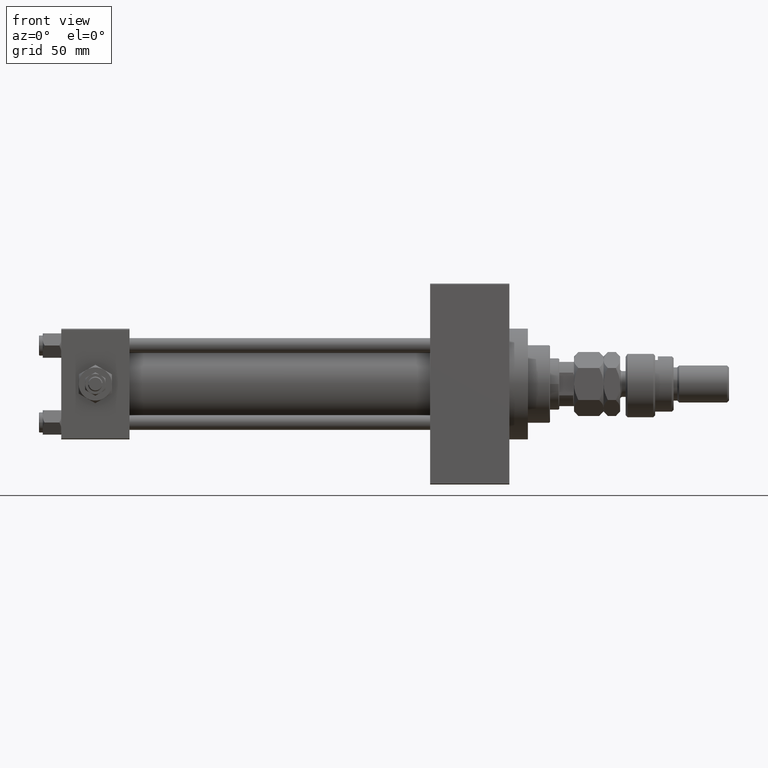
[diagram: clean part render]
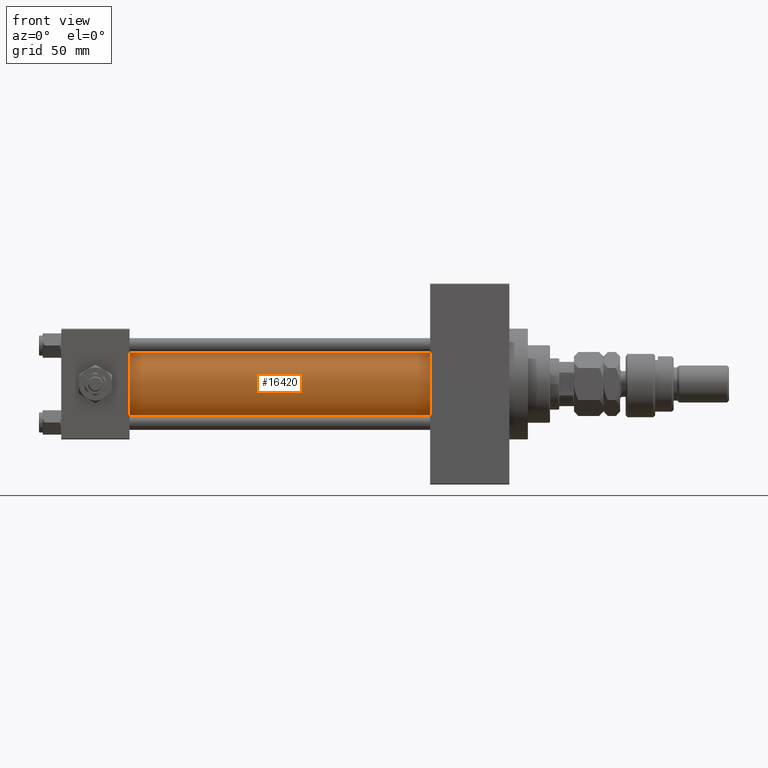
[diagram: same view with one face highlighted and labeled with its STEP entity id]
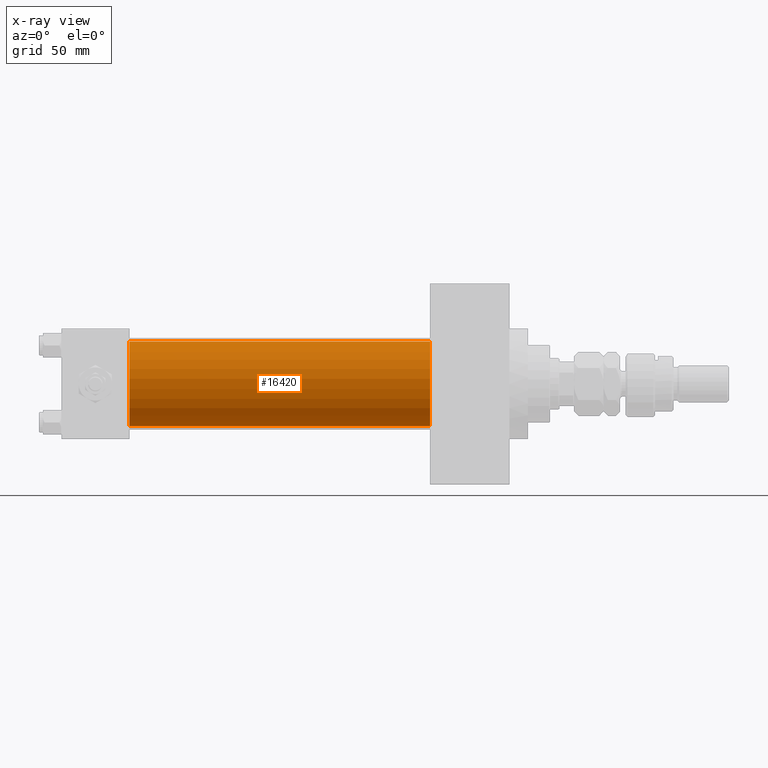
[diagram: x-ray of the same camera — body ghosted, the highlighted face saturated]
A machine part, front view. The second image highlights one B-rep face of the part: STEP entity #16420.
The next image is the same camera in x-ray: the body ghosted, the highlighted face saturated — about 0% of this face is hidden behind the body in this view.
In plain terms, the highlighted cylindrical surface (partial cylindrical patch) has radius 23 mm, axis along (-1, -0, -0).
Its self-contained STEP definition (entity closure, byte-faithful):
#447 = EDGE_LOOP ( 'NONE', ( #39686, #45473, #38553, #51198 ) ) ;
#570 = DIRECTION ( 'NONE',  ( 0.000000000000000000, 0.000000000000000000, 1.000000000000000000 ) ) ;
#825 = CARTESIAN_POINT ( 'NONE',  ( 37.00000000000000711, -2.602085213965210642E-15, 23.00000000000000000 ) ) ;
#1717 = DIRECTION ( 'NONE',  ( -1.000000000000000000, -0.000000000000000000, -0.000000000000000000 ) ) ;
#6308 = CARTESIAN_POINT ( 'NONE',  ( 200.0000000000000000, 2.146024240737016609E-16, -23.00000000000000000 ) ) ;
#6529 = VECTOR ( 'NONE', #34233, 1000.000000000000000 ) ;
#9083 = DIRECTION ( 'NONE',  ( 0.000000000000000000, 0.000000000000000000, -1.000000000000000000 ) ) ;
#10307 = CARTESIAN_POINT ( 'NONE',  ( 200.0000000000000000, -2.602085213965210642E-15, 0.000000000000000000 ) ) ;
#12764 = VERTEX_POINT ( 'NONE', #51118 ) ;
#13994 = EDGE_CURVE ( 'NONE', #38075, #17124, #14201, .T. ) ;
#14201 = CIRCLE ( 'NONE', #27568, 23.00000000000000000 ) ;
#14401 = EDGE_CURVE ( 'NONE', #49861, #38075, #21792, .T. ) ;
#16420 = ADVANCED_FACE ( 'NONE', ( #26246 ), #26512, .T. ) ;
#17124 = VERTEX_POINT ( 'NONE', #44314 ) ;
#18297 = LINE ( 'NONE', #6308, #6529 ) ;
#18400 = DIRECTION ( 'NONE',  ( -1.000000000000000000, -0.000000000000000000, -0.000000000000000000 ) ) ;
#21792 = LINE ( 'NONE', #33548, #41674 ) ;
#22041 = CARTESIAN_POINT ( 'NONE',  ( 200.0000000000000000, -2.602085213965210642E-15, 23.00000000000000000 ) ) ;
#22415 = AXIS2_PLACEMENT_3D ( 'NONE', #33095, #29447, #9083 ) ;
#24316 = CARTESIAN_POINT ( 'NONE',  ( 37.00000000000000711, -2.602085213965210642E-15, 0.000000000000000000 ) ) ;
#25463 = DIRECTION ( 'NONE',  ( 0.000000000000000000, 0.000000000000000000, 1.000000000000000000 ) ) ;
#26246 = FACE_OUTER_BOUND ( 'NONE', #447, .T. ) ;
#26512 = CYLINDRICAL_SURFACE ( 'NONE', #34296, 23.00000000000000000 ) ;
#27568 = AXIS2_PLACEMENT_3D ( 'NONE', #24316, #36304, #570 ) ;
#29447 = DIRECTION ( 'NONE',  ( 1.000000000000000000, 0.000000000000000000, 0.000000000000000000 ) ) ;
#33095 = CARTESIAN_POINT ( 'NONE',  ( 200.0000000000000000, -2.602085213965210642E-15, 0.000000000000000000 ) ) ;
#33548 = CARTESIAN_POINT ( 'NONE',  ( 200.0000000000000000, -2.602085213965210642E-15, 23.00000000000000000 ) ) ;
#34233 = DIRECTION ( 'NONE',  ( -1.000000000000000000, -0.000000000000000000, -0.000000000000000000 ) ) ;
#34296 = AXIS2_PLACEMENT_3D ( 'NONE', #10307, #1717, #25463 ) ;
#36304 = DIRECTION ( 'NONE',  ( 1.000000000000000000, -0.000000000000000000, 0.000000000000000000 ) ) ;
#38075 = VERTEX_POINT ( 'NONE', #825 ) ;
#38553 = ORIENTED_EDGE ( 'NONE', *, *, #14401, .T. ) ;
#39686 = ORIENTED_EDGE ( 'NONE', *, *, #39822, .F. ) ;
#39822 = EDGE_CURVE ( 'NONE', #12764, #17124, #18297, .T. ) ;
#41674 = VECTOR ( 'NONE', #18400, 1000.000000000000000 ) ;
#44314 = CARTESIAN_POINT ( 'NONE',  ( 37.00000000000000711, 2.146024240737016609E-16, -23.00000000000000000 ) ) ;
#44892 = CIRCLE ( 'NONE', #22415, 23.00000000000000000 ) ;
#45473 = ORIENTED_EDGE ( 'NONE', *, *, #46359, .F. ) ;
#46359 = EDGE_CURVE ( 'NONE', #49861, #12764, #44892, .T. ) ;
#49861 = VERTEX_POINT ( 'NONE', #22041 ) ;
#51118 = CARTESIAN_POINT ( 'NONE',  ( 200.0000000000000000, 2.146024240737016609E-16, -23.00000000000000000 ) ) ;
#51198 = ORIENTED_EDGE ( 'NONE', *, *, #13994, .T. ) ;